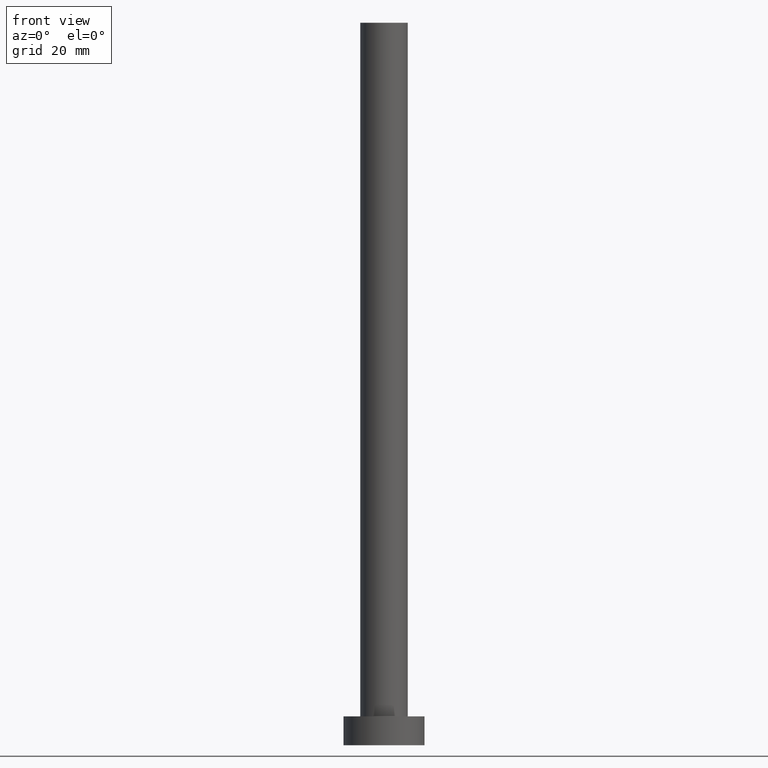
[diagram: clean part render]
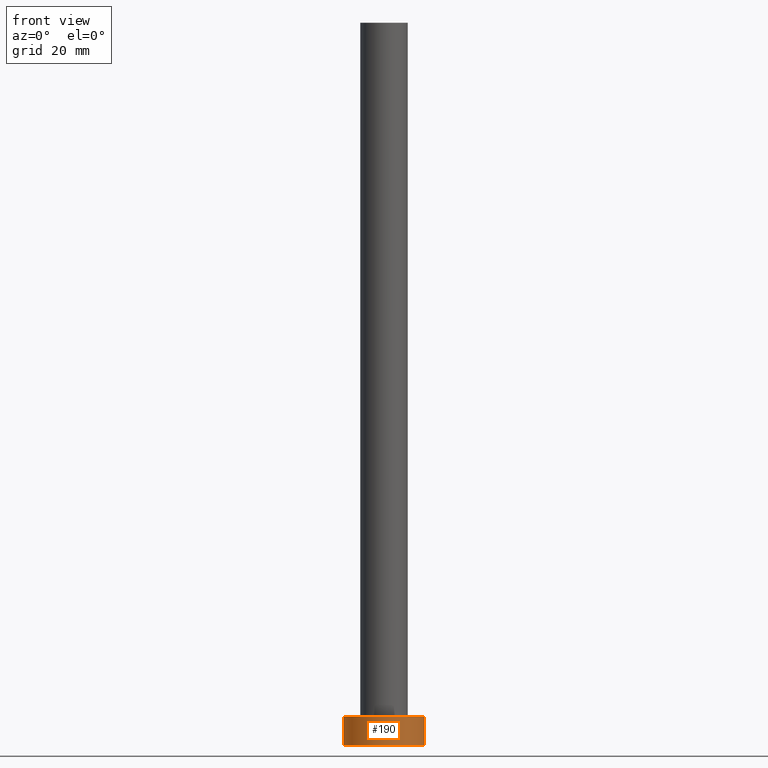
[diagram: same view with one face highlighted and labeled with its STEP entity id]
A machine part, front view. The second image highlights one B-rep face of the part: STEP entity #190.
In plain terms, the highlighted cylindrical surface (partial cylindrical patch) has radius 7 mm, axis along (-0, -0, -1).
Its self-contained STEP definition (entity closure, byte-faithful):
#9 = CYLINDRICAL_SURFACE ( 'NONE', #16, 7.000000000000000000 ) ;
#16 = AXIS2_PLACEMENT_3D ( 'NONE', #76, #138, #37 ) ;
#19 = DIRECTION ( 'NONE',  ( 0.000000000000000000, 0.000000000000000000, 1.000000000000000000 ) ) ;
#37 = DIRECTION ( 'NONE',  ( -1.000000000000000000, 0.000000000000000000, 0.000000000000000000 ) ) ;
#39 = DIRECTION ( 'NONE',  ( 1.000000000000000000, 0.000000000000000000, 0.000000000000000000 ) ) ;
#49 = CARTESIAN_POINT ( 'NONE',  ( 7.000000000000000000, 8.572527594031473190E-16, 0.000000000000000000 ) ) ;
#50 = ORIENTED_EDGE ( 'NONE', *, *, #153, .F. ) ;
#56 = DIRECTION ( 'NONE',  ( 0.000000000000000000, 0.000000000000000000, 1.000000000000000000 ) ) ;
#61 = VERTEX_POINT ( 'NONE', #160 ) ;
#76 = CARTESIAN_POINT ( 'NONE',  ( 0.000000000000000000, 0.000000000000000000, 5.000000000000000000 ) ) ;
#83 = LINE ( 'NONE', #253, #163 ) ;
#95 = ORIENTED_EDGE ( 'NONE', *, *, #242, .F. ) ;
#96 = CIRCLE ( 'NONE', #251, 7.000000000000000000 ) ;
#104 = VERTEX_POINT ( 'NONE', #204 ) ;
#114 = DIRECTION ( 'NONE',  ( -0.000000000000000000, -0.000000000000000000, -1.000000000000000000 ) ) ;
#115 = DIRECTION ( 'NONE',  ( -0.000000000000000000, -0.000000000000000000, -1.000000000000000000 ) ) ;
#124 = CARTESIAN_POINT ( 'NONE',  ( 0.000000000000000000, 0.000000000000000000, 0.000000000000000000 ) ) ;
#133 = LINE ( 'NONE', #225, #215 ) ;
#135 = CARTESIAN_POINT ( 'NONE',  ( 7.000000000000000000, 8.572527594031473190E-16, 5.000000000000000000 ) ) ;
#138 = DIRECTION ( 'NONE',  ( -0.000000000000000000, -0.000000000000000000, -1.000000000000000000 ) ) ;
#146 = EDGE_LOOP ( 'NONE', ( #95, #50, #172, #165 ) ) ;
#153 = EDGE_CURVE ( 'NONE', #61, #254, #194, .T. ) ;
#157 = VERTEX_POINT ( 'NONE', #49 ) ;
#160 = CARTESIAN_POINT ( 'NONE',  ( -7.000000000000000000, 0.000000000000000000, 5.000000000000000000 ) ) ;
#162 = EDGE_CURVE ( 'NONE', #61, #104, #133, .T. ) ;
#163 = VECTOR ( 'NONE', #115, 1000.000000000000000 ) ;
#165 = ORIENTED_EDGE ( 'NONE', *, *, #197, .T. ) ;
#172 = ORIENTED_EDGE ( 'NONE', *, *, #162, .T. ) ;
#176 = AXIS2_PLACEMENT_3D ( 'NONE', #207, #19, #181 ) ;
#181 = DIRECTION ( 'NONE',  ( 1.000000000000000000, 0.000000000000000000, 0.000000000000000000 ) ) ;
#190 = ADVANCED_FACE ( 'NONE', ( #234 ), #9, .T. ) ;
#194 = CIRCLE ( 'NONE', #176, 7.000000000000000000 ) ;
#197 = EDGE_CURVE ( 'NONE', #104, #157, #96, .T. ) ;
#204 = CARTESIAN_POINT ( 'NONE',  ( -7.000000000000000000, 0.000000000000000000, 0.000000000000000000 ) ) ;
#207 = CARTESIAN_POINT ( 'NONE',  ( 0.000000000000000000, 0.000000000000000000, 5.000000000000000000 ) ) ;
#215 = VECTOR ( 'NONE', #114, 1000.000000000000000 ) ;
#225 = CARTESIAN_POINT ( 'NONE',  ( -7.000000000000000000, 0.000000000000000000, 5.000000000000000000 ) ) ;
#234 = FACE_OUTER_BOUND ( 'NONE', #146, .T. ) ;
#242 = EDGE_CURVE ( 'NONE', #254, #157, #83, .T. ) ;
#251 = AXIS2_PLACEMENT_3D ( 'NONE', #124, #56, #39 ) ;
#253 = CARTESIAN_POINT ( 'NONE',  ( 7.000000000000000000, 8.572527594031473190E-16, 5.000000000000000000 ) ) ;
#254 = VERTEX_POINT ( 'NONE', #135 ) ;